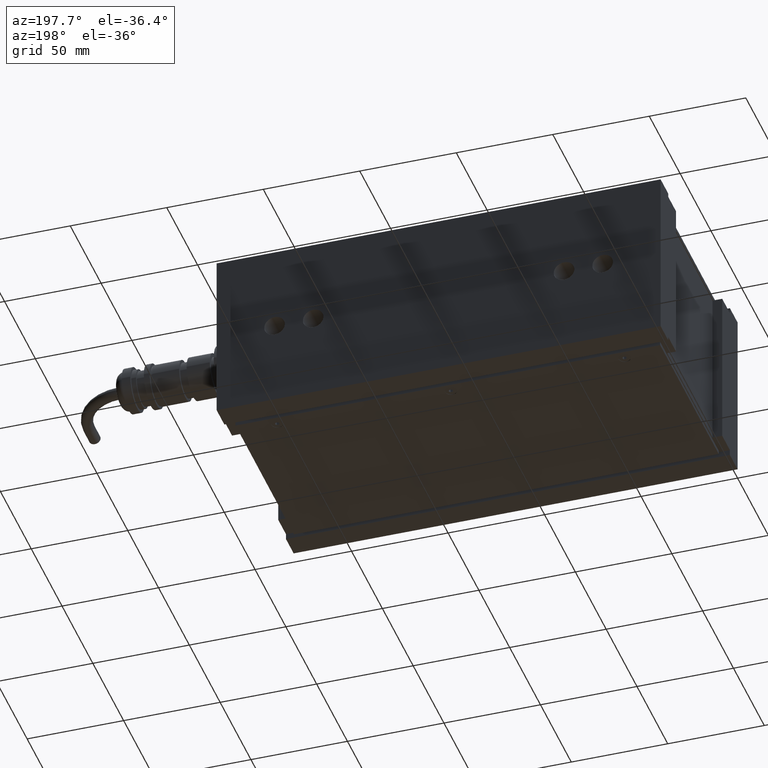
[diagram: clean part render]
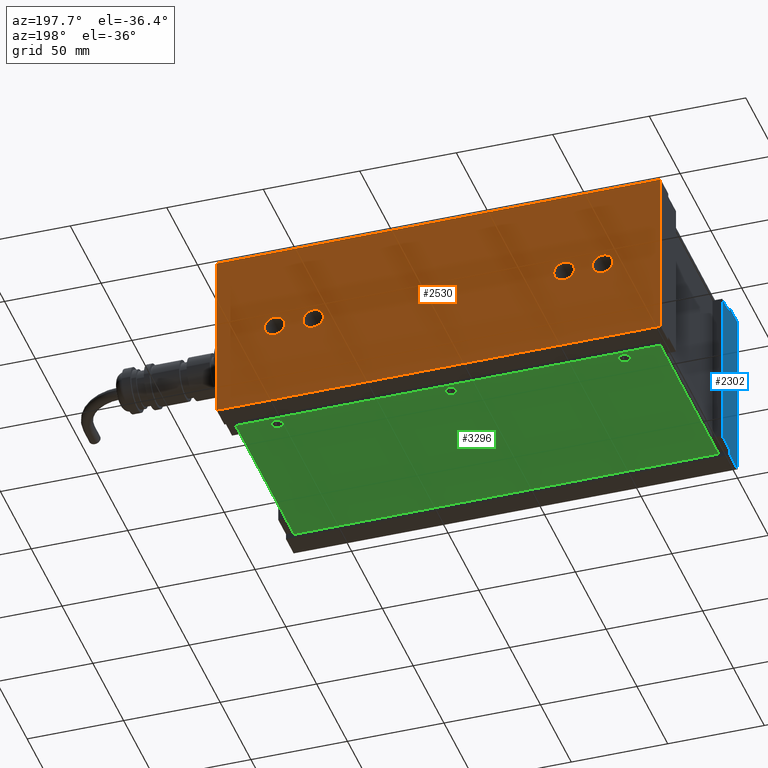
[diagram: same view with three faces highlighted in distinct colors, each labeled with its STEP entity id]
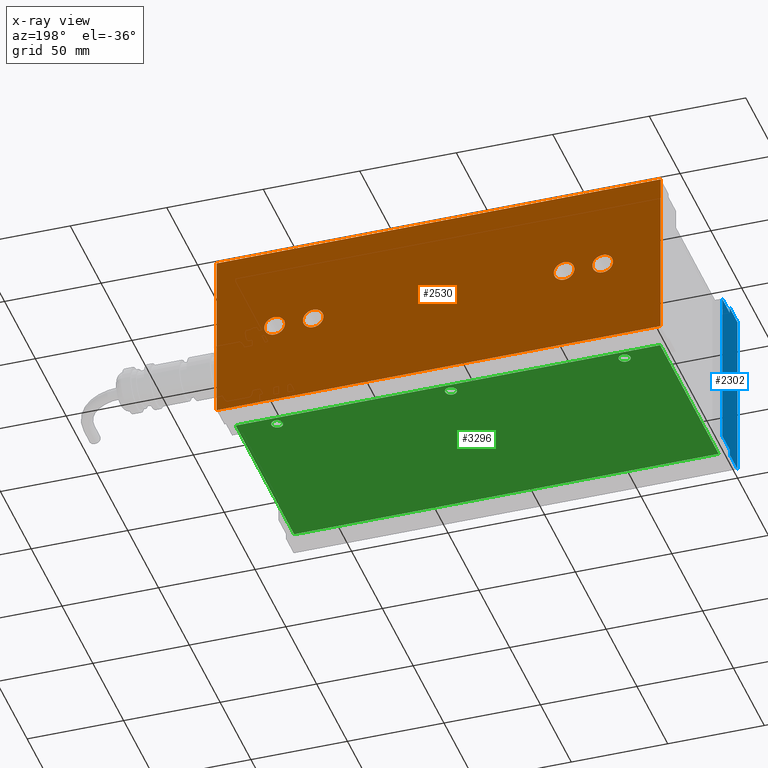
[diagram: x-ray of the same camera — body ghosted, the three highlighted faces saturated]
A machine part, auxiliary view with three faces highlighted in distinct colors.
The next image is the same camera in x-ray (body ghosted, the three faces saturated) — at least one of them is partly hidden behind the body in this view.
Their STEP definitions:

[orange] entity #2530 — the highlighted planar face has unit normal (0, 1, -0).
#997=CARTESIAN_POINT('',(-85.0,62.500000000000000,5.338000000000000));
#998=VERTEX_POINT('',#997);
#1007=CARTESIAN_POINT('',(-85.0,62.500000000000000,-5.338000000000000));
#1008=VERTEX_POINT('',#1007);
#1009=CARTESIAN_POINT('',(-85.0,62.500000000000000,0.0));
#1010=DIRECTION('',(0.0,-1.0,0.0));
#1011=DIRECTION('',(0.0,0.0,1.0));
#1012=AXIS2_PLACEMENT_3D('',#1009,#1010,#1011);
#1013=CIRCLE('',#1012,5.338000000000000);
#1014=EDGE_CURVE('',#1008,#998,#1013,.T.);
#1062=CARTESIAN_POINT('',(85.0,62.500000000000000,5.338000000000000));
#1063=VERTEX_POINT('',#1062);
#1072=CARTESIAN_POINT('',(85.0,62.500000000000000,-5.338000000000000));
#1073=VERTEX_POINT('',#1072);
#1074=CARTESIAN_POINT('',(85.0,62.500000000000000,0.0));
#1075=DIRECTION('',(0.0,-1.0,0.0));
#1076=DIRECTION('',(0.0,0.0,1.0));
#1077=AXIS2_PLACEMENT_3D('',#1074,#1075,#1076);
#1078=CIRCLE('',#1077,5.338000000000000);
#1079=EDGE_CURVE('',#1073,#1063,#1078,.T.);
#1127=CARTESIAN_POINT('',(-65.0,62.500000000000000,5.338000000000000));
#1128=VERTEX_POINT('',#1127);
#1137=CARTESIAN_POINT('',(-65.0,62.500000000000000,-5.338000000000000));
#1138=VERTEX_POINT('',#1137);
#1139=CARTESIAN_POINT('',(-65.0,62.500000000000000,0.0));
#1140=DIRECTION('',(0.0,-1.0,0.0));
#1141=DIRECTION('',(0.0,0.0,1.0));
#1142=AXIS2_PLACEMENT_3D('',#1139,#1140,#1141);
#1143=CIRCLE('',#1142,5.338000000000000);
#1144=EDGE_CURVE('',#1138,#1128,#1143,.T.);
#1192=CARTESIAN_POINT('',(65.0,62.500000000000000,5.338000000000000));
#1193=VERTEX_POINT('',#1192);
#1202=CARTESIAN_POINT('',(65.0,62.500000000000000,-5.338000000000000));
#1203=VERTEX_POINT('',#1202);
#1204=CARTESIAN_POINT('',(65.0,62.500000000000000,0.0));
#1205=DIRECTION('',(0.0,-1.0,0.0));
#1206=DIRECTION('',(0.0,0.0,1.0));
#1207=AXIS2_PLACEMENT_3D('',#1204,#1205,#1206);
#1208=CIRCLE('',#1207,5.338000000000000);
#1209=EDGE_CURVE('',#1203,#1193,#1208,.T.);
#1277=CARTESIAN_POINT('',(65.0,62.500000000000000,0.0));
#1278=DIRECTION('',(0.0,-1.0,0.0));
#1279=DIRECTION('',(0.0,0.0,1.0));
#1280=AXIS2_PLACEMENT_3D('',#1277,#1278,#1279);
#1281=CIRCLE('',#1280,5.338000000000000);
#1282=EDGE_CURVE('',#1193,#1203,#1281,.T.);
#1312=CARTESIAN_POINT('',(-65.0,62.500000000000000,0.0));
#1313=DIRECTION('',(0.0,-1.0,0.0));
#1314=DIRECTION('',(0.0,0.0,1.0));
#1315=AXIS2_PLACEMENT_3D('',#1312,#1313,#1314);
#1316=CIRCLE('',#1315,5.338000000000000);
#1317=EDGE_CURVE('',#1128,#1138,#1316,.T.);
#1347=CARTESIAN_POINT('',(85.0,62.500000000000000,0.0));
#1348=DIRECTION('',(0.0,-1.0,0.0));
#1349=DIRECTION('',(0.0,0.0,1.0));
#1350=AXIS2_PLACEMENT_3D('',#1347,#1348,#1349);
#1351=CIRCLE('',#1350,5.338000000000000);
#1352=EDGE_CURVE('',#1063,#1073,#1351,.T.);
#1382=CARTESIAN_POINT('',(-85.0,62.500000000000000,0.0));
#1383=DIRECTION('',(0.0,-1.0,0.0));
#1384=DIRECTION('',(0.0,0.0,1.0));
#1385=AXIS2_PLACEMENT_3D('',#1382,#1383,#1384);
#1386=CIRCLE('',#1385,5.338000000000000);
#1387=EDGE_CURVE('',#998,#1008,#1386,.T.);
#2455=CARTESIAN_POINT('',(115.0,62.500000000000000,-45.0));
#2456=VERTEX_POINT('',#2455);
#2463=CARTESIAN_POINT('',(115.0,62.500000000000000,45.0));
#2464=VERTEX_POINT('',#2463);
#2465=CARTESIAN_POINT('',(115.0,62.500000000000000,-45.0));
#2466=DIRECTION('',(0.0,0.0,1.0));
#2467=VECTOR('',#2466,90.0);
#2468=LINE('',#2465,#2467);
#2469=EDGE_CURVE('',#2456,#2464,#2468,.T.);
#2484=CARTESIAN_POINT('',(115.0,62.500000000000000,0.0));
#2485=DIRECTION('',(0.0,1.0,0.0));
#2486=DIRECTION('',(0.0,0.0,1.0));
#2487=AXIS2_PLACEMENT_3D('',#2484,#2485,#2486);
#2488=PLANE('',#2487);
#2489=CARTESIAN_POINT('',(-115.0,62.500000000000000,-45.0));
#2490=VERTEX_POINT('',#2489);
#2491=CARTESIAN_POINT('',(115.0,62.500000000000000,-45.0));
#2492=DIRECTION('',(-1.0,0.0,0.0));
#2493=VECTOR('',#2492,230.0);
#2494=LINE('',#2491,#2493);
#2495=EDGE_CURVE('',#2456,#2490,#2494,.T.);
#2496=ORIENTED_EDGE('',*,*,#2495,.T.);
#2497=CARTESIAN_POINT('',(-115.0,62.500000000000000,45.0));
#2498=VERTEX_POINT('',#2497);
#2499=CARTESIAN_POINT('',(-115.0,62.500000000000000,-45.0));
#2500=DIRECTION('',(0.0,0.0,1.0));
#2501=VECTOR('',#2500,90.0);
#2502=LINE('',#2499,#2501);
#2503=EDGE_CURVE('',#2490,#2498,#2502,.T.);
#2504=ORIENTED_EDGE('',*,*,#2503,.T.);
#2505=CARTESIAN_POINT('',(-115.0,62.500000000000000,45.0));
#2506=DIRECTION('',(1.0,0.0,0.0));
#2507=VECTOR('',#2506,230.0);
#2508=LINE('',#2505,#2507);
#2509=EDGE_CURVE('',#2498,#2464,#2508,.T.);
#2510=ORIENTED_EDGE('',*,*,#2509,.T.);
#2511=ORIENTED_EDGE('',*,*,#2469,.F.);
#2512=EDGE_LOOP('',(#2496,#2504,#2510,#2511));
#2513=FACE_OUTER_BOUND('',#2512,.T.);
#2514=ORIENTED_EDGE('',*,*,#1282,.T.);
#2515=ORIENTED_EDGE('',*,*,#1209,.T.);
#2516=EDGE_LOOP('',(#2514,#2515));
#2517=FACE_BOUND('',#2516,.T.);
#2518=ORIENTED_EDGE('',*,*,#1317,.T.);
#2519=ORIENTED_EDGE('',*,*,#1144,.T.);
#2520=EDGE_LOOP('',(#2518,#2519));
#2521=FACE_BOUND('',#2520,.T.);
#2522=ORIENTED_EDGE('',*,*,#1352,.T.);
#2523=ORIENTED_EDGE('',*,*,#1079,.T.);
#2524=EDGE_LOOP('',(#2522,#2523));
#2525=FACE_BOUND('',#2524,.T.);
#2526=ORIENTED_EDGE('',*,*,#1387,.T.);
#2527=ORIENTED_EDGE('',*,*,#1014,.T.);
#2528=EDGE_LOOP('',(#2526,#2527));
#2529=FACE_BOUND('',#2528,.T.);
#2530=ADVANCED_FACE('',(#2513,#2517,#2521,#2525,#2529),#2488,.T.);

[blue] entity #2302 — the highlighted planar face has unit normal (-1, 0, -0).
#1854=CARTESIAN_POINT('',(-114.999999999999890,-37.500000000000000,-42.0));
#1855=VERTEX_POINT('',#1854);
#1902=CARTESIAN_POINT('',(-114.999999999999890,-49.999999999999886,-42.0));
#1903=VERTEX_POINT('',#1902);
#1910=CARTESIAN_POINT('',(-114.999999999999890,-37.500000000000000,-42.0));
#1911=DIRECTION('',(0.0,-1.0,0.0));
#1912=VECTOR('',#1911,12.499999999999886);
#1913=LINE('',#1910,#1912);
#1914=EDGE_CURVE('',#1855,#1903,#1913,.T.);
#2157=CARTESIAN_POINT('',(-114.999999999999890,-49.999999999999886,-45.0));
#2158=VERTEX_POINT('',#2157);
#2165=CARTESIAN_POINT('',(-114.999999999999890,-49.999999999999886,-42.0));
#2166=DIRECTION('',(0.0,0.0,-1.0));
#2167=VECTOR('',#2166,3.0);
#2168=LINE('',#2165,#2167);
#2169=EDGE_CURVE('',#1903,#2158,#2168,.T.);
#2236=CARTESIAN_POINT('',(-115.0,-37.500000000000000,42.0));
#2237=VERTEX_POINT('',#2236);
#2238=CARTESIAN_POINT('',(-114.999999999999890,-37.500000000000000,-42.0));
#2239=DIRECTION('',(0.0,0.0,1.0));
#2240=VECTOR('',#2239,84.0);
#2241=LINE('',#2238,#2240);
#2242=EDGE_CURVE('',#1855,#2237,#2241,.T.);
#2254=CARTESIAN_POINT('',(-115.0,-37.500000000000000,0.0));
#2255=DIRECTION('',(-1.0,0.0,0.0));
#2256=DIRECTION('',(0.0,0.0,1.0));
#2257=AXIS2_PLACEMENT_3D('',#2254,#2255,#2256);
#2258=PLANE('',#2257);
#2259=ORIENTED_EDGE('',*,*,#2169,.T.);
#2260=CARTESIAN_POINT('',(-115.0,-62.500000000000000,-45.0));
#2261=VERTEX_POINT('',#2260);
#2262=CARTESIAN_POINT('',(-114.999999999999890,-49.999999999999886,-45.0));
#2263=DIRECTION('',(0.0,-1.0,0.0));
#2264=VECTOR('',#2263,12.500000000000114);
#2265=LINE('',#2262,#2264);
#2266=EDGE_CURVE('',#2158,#2261,#2265,.T.);
#2267=ORIENTED_EDGE('',*,*,#2266,.T.);
#2268=CARTESIAN_POINT('',(-115.0,-62.500000000000000,45.0));
#2269=VERTEX_POINT('',#2268);
#2270=CARTESIAN_POINT('',(-115.0,-62.500000000000000,45.0));
#2271=DIRECTION('',(0.0,0.0,-1.0));
#2272=VECTOR('',#2271,90.0);
#2273=LINE('',#2270,#2272);
#2274=EDGE_CURVE('',#2269,#2261,#2273,.T.);
#2275=ORIENTED_EDGE('',*,*,#2274,.F.);
#2276=CARTESIAN_POINT('',(-115.0,-50.0,45.0));
#2277=VERTEX_POINT('',#2276);
#2278=CARTESIAN_POINT('',(-115.0,-62.500000000000000,45.0));
#2279=DIRECTION('',(0.0,1.0,0.0));
#2280=VECTOR('',#2279,12.500000000000000);
#2281=LINE('',#2278,#2280);
#2282=EDGE_CURVE('',#2269,#2277,#2281,.T.);
#2283=ORIENTED_EDGE('',*,*,#2282,.T.);
#2284=CARTESIAN_POINT('',(-115.0,-50.0,42.0));
#2285=VERTEX_POINT('',#2284);
#2286=CARTESIAN_POINT('',(-115.0,-50.0,45.0));
#2287=DIRECTION('',(0.0,0.0,-1.0));
#2288=VECTOR('',#2287,3.0);
#2289=LINE('',#2286,#2288);
#2290=EDGE_CURVE('',#2277,#2285,#2289,.T.);
#2291=ORIENTED_EDGE('',*,*,#2290,.T.);
#2292=CARTESIAN_POINT('',(-115.0,-50.0,42.0));
#2293=DIRECTION('',(0.0,1.0,0.0));
#2294=VECTOR('',#2293,12.500000000000000);
#2295=LINE('',#2292,#2294);
#2296=EDGE_CURVE('',#2285,#2237,#2295,.T.);
#2297=ORIENTED_EDGE('',*,*,#2296,.T.);
#2298=ORIENTED_EDGE('',*,*,#2242,.F.);
#2299=ORIENTED_EDGE('',*,*,#1914,.T.);
#2300=EDGE_LOOP('',(#2259,#2267,#2275,#2283,#2291,#2297,#2298,#2299));
#2301=FACE_OUTER_BOUND('',#2300,.T.);
#2302=ADVANCED_FACE('',(#2301),#2258,.T.);

[green] entity #3296 — the highlighted planar face has unit normal (0, -0, -1).
#2698=CARTESIAN_POINT('',(-87.0,42.500000000000000,1.0));
#2699=VERTEX_POINT('',#2698);
#2708=CARTESIAN_POINT('',(-93.0,42.500000000000000,1.0));
#2709=VERTEX_POINT('',#2708);
#2710=CARTESIAN_POINT('',(-90.0,42.500000000000000,1.0));
#2711=DIRECTION('',(0.0,0.0,-1.0));
#2712=DIRECTION('',(1.0,0.0,0.0));
#2713=AXIS2_PLACEMENT_3D('',#2710,#2711,#2712);
#2714=CIRCLE('',#2713,3.0);
#2715=EDGE_CURVE('',#2709,#2699,#2714,.T.);
#2762=CARTESIAN_POINT('',(3.0,42.500000000000000,1.0));
#2763=VERTEX_POINT('',#2762);
#2772=CARTESIAN_POINT('',(-3.0,42.500000000000000,1.0));
#2773=VERTEX_POINT('',#2772);
#2774=CARTESIAN_POINT('',(0.0,42.500000000000000,1.0));
#2775=DIRECTION('',(0.0,0.0,-1.0));
#2776=DIRECTION('',(1.0,0.0,0.0));
#2777=AXIS2_PLACEMENT_3D('',#2774,#2775,#2776);
#2778=CIRCLE('',#2777,3.0);
#2779=EDGE_CURVE('',#2773,#2763,#2778,.T.);
#2836=CARTESIAN_POINT('',(93.0,42.500000000000000,1.0));
#2837=VERTEX_POINT('',#2836);
#2846=CARTESIAN_POINT('',(87.0,42.500000000000000,1.0));
#2847=VERTEX_POINT('',#2846);
#2848=CARTESIAN_POINT('',(90.0,42.500000000000000,1.0));
#2849=DIRECTION('',(0.0,0.0,-1.0));
#2850=DIRECTION('',(1.0,0.0,0.0));
#2851=AXIS2_PLACEMENT_3D('',#2848,#2849,#2850);
#2852=CIRCLE('',#2851,3.0);
#2853=EDGE_CURVE('',#2847,#2837,#2852,.T.);
#3043=CARTESIAN_POINT('',(90.0,42.500000000000000,1.0));
#3044=DIRECTION('',(0.0,0.0,-1.0));
#3045=DIRECTION('',(1.0,0.0,0.0));
#3046=AXIS2_PLACEMENT_3D('',#3043,#3044,#3045);
#3047=CIRCLE('',#3046,3.0);
#3048=EDGE_CURVE('',#2837,#2847,#3047,.T.);
#3079=CARTESIAN_POINT('',(0.0,42.500000000000000,1.0));
#3080=DIRECTION('',(0.0,0.0,-1.0));
#3081=DIRECTION('',(1.0,0.0,0.0));
#3082=AXIS2_PLACEMENT_3D('',#3079,#3080,#3081);
#3083=CIRCLE('',#3082,3.0);
#3084=EDGE_CURVE('',#2763,#2773,#3083,.T.);
#3121=CARTESIAN_POINT('',(-90.0,42.500000000000000,1.0));
#3122=DIRECTION('',(0.0,0.0,-1.0));
#3123=DIRECTION('',(1.0,0.0,0.0));
#3124=AXIS2_PLACEMENT_3D('',#3121,#3122,#3123);
#3125=CIRCLE('',#3124,3.0);
#3126=EDGE_CURVE('',#2699,#2709,#3125,.T.);
#3154=CARTESIAN_POINT('',(-110.0,-47.500000000000000,1.0));
#3155=VERTEX_POINT('',#3154);
#3156=CARTESIAN_POINT('',(-110.0,47.500000000000000,1.0));
#3157=VERTEX_POINT('',#3156);
#3158=CARTESIAN_POINT('',(-110.0,-47.500000000000000,1.0));
#3159=DIRECTION('',(0.0,1.0,0.0));
#3160=VECTOR('',#3159,95.0);
#3161=LINE('',#3158,#3160);
#3162=EDGE_CURVE('',#3155,#3157,#3161,.T.);
#3194=CARTESIAN_POINT('',(110.0,47.500000000000000,1.0));
#3195=VERTEX_POINT('',#3194);
#3196=CARTESIAN_POINT('',(-110.0,47.500000000000000,1.0));
#3197=DIRECTION('',(1.0,0.0,0.0));
#3198=VECTOR('',#3197,220.0);
#3199=LINE('',#3196,#3198);
#3200=EDGE_CURVE('',#3157,#3195,#3199,.T.);
#3225=CARTESIAN_POINT('',(110.0,-47.500000000000000,1.0));
#3226=VERTEX_POINT('',#3225);
#3227=CARTESIAN_POINT('',(110.0,47.500000000000000,1.0));
#3228=DIRECTION('',(0.0,-1.0,0.0));
#3229=VECTOR('',#3228,95.0);
#3230=LINE('',#3227,#3229);
#3231=EDGE_CURVE('',#3195,#3226,#3230,.T.);
#3256=CARTESIAN_POINT('',(110.0,-47.500000000000000,1.0));
#3257=DIRECTION('',(-1.0,0.0,0.0));
#3258=VECTOR('',#3257,220.0);
#3259=LINE('',#3256,#3258);
#3260=EDGE_CURVE('',#3226,#3155,#3259,.T.);
#3273=CARTESIAN_POINT('',(0.0,0.0,1.0));
#3274=DIRECTION('',(0.0,0.0,1.0));
#3275=DIRECTION('',(1.0,0.0,0.0));
#3276=AXIS2_PLACEMENT_3D('',#3273,#3274,#3275);
#3277=PLANE('',#3276);
#3278=ORIENTED_EDGE('',*,*,#3162,.F.);
#3279=ORIENTED_EDGE('',*,*,#3260,.F.);
#3280=ORIENTED_EDGE('',*,*,#3231,.F.);
#3281=ORIENTED_EDGE('',*,*,#3200,.F.);
#3282=EDGE_LOOP('',(#3278,#3279,#3280,#3281));
#3283=FACE_OUTER_BOUND('',#3282,.T.);
#3284=ORIENTED_EDGE('',*,*,#3048,.T.);
#3285=ORIENTED_EDGE('',*,*,#2853,.T.);
#3286=EDGE_LOOP('',(#3284,#3285));
#3287=FACE_BOUND('',#3286,.T.);
#3288=ORIENTED_EDGE('',*,*,#3084,.T.);
#3289=ORIENTED_EDGE('',*,*,#2779,.T.);
#3290=EDGE_LOOP('',(#3288,#3289));
#3291=FACE_BOUND('',#3290,.T.);
#3292=ORIENTED_EDGE('',*,*,#3126,.T.);
#3293=ORIENTED_EDGE('',*,*,#2715,.T.);
#3294=EDGE_LOOP('',(#3292,#3293));
#3295=FACE_BOUND('',#3294,.T.);
#3296=ADVANCED_FACE('',(#3283,#3287,#3291,#3295),#3277,.T.);